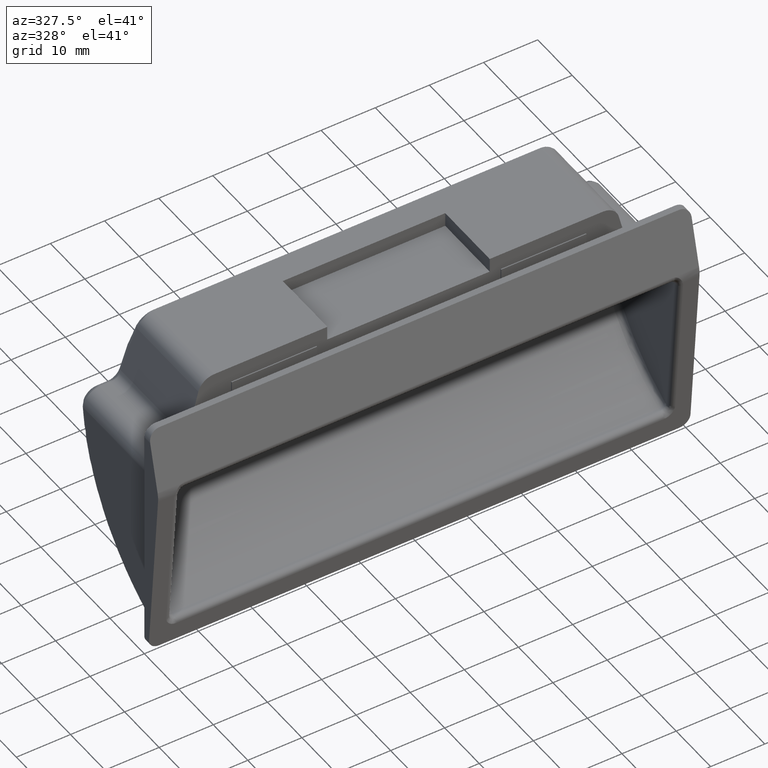
[diagram: clean part render]
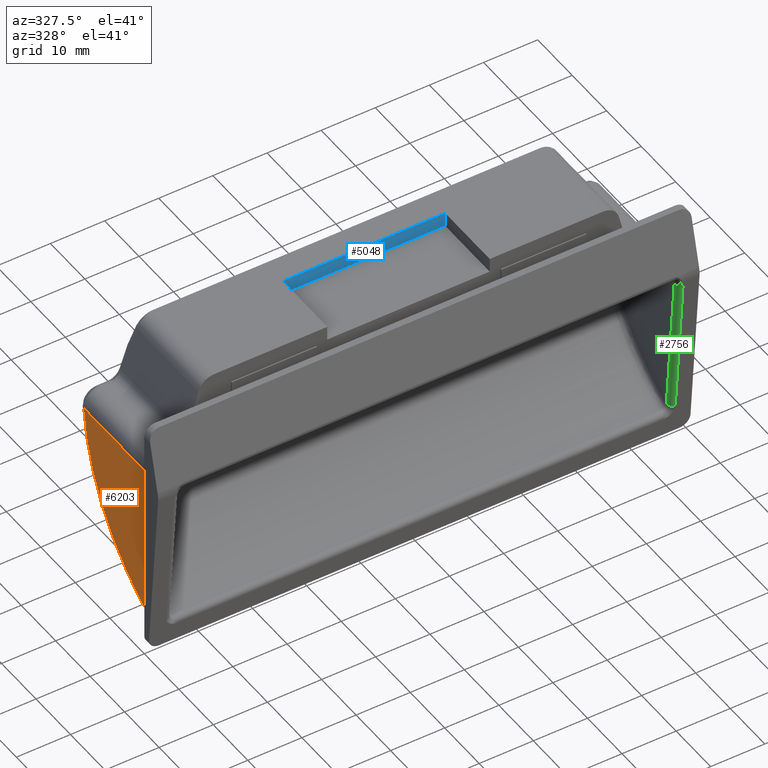
[diagram: same view with three faces highlighted in distinct colors, each labeled with its STEP entity id]
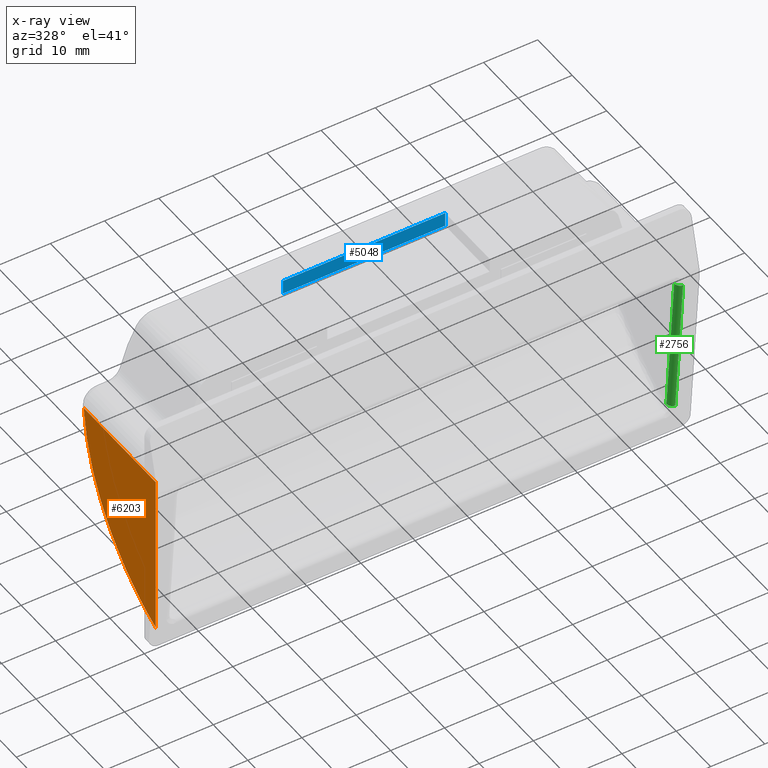
[diagram: x-ray of the same camera — body ghosted, the three highlighted faces saturated]
A machine part, auxiliary view with three faces highlighted in distinct colors.
The next image is the same camera in x-ray (body ghosted, the three faces saturated) — at least one of them is partly hidden behind the body in this view.
Their STEP definitions:

[orange] entity #6203 — the highlighted face is a freeform B-spline surface patch.
#182=CARTESIAN_POINT('',(-47.896685749016193,-0.001224091961159,-20.546921611470491));
#183=VERTEX_POINT('',#182);
#222=CARTESIAN_POINT('',(-47.899999999999999,20.856489700100902,9.449999999999900));
#223=VERTEX_POINT('',#222);
#224=CARTESIAN_POINT('',(-47.899999999999999,20.856489700100902,9.449999999999900));
#225=CARTESIAN_POINT('',(-47.899625413972203,20.426494258340728,4.719709121271092));
#226=CARTESIAN_POINT('',(-47.899208002734632,18.821062741107738,0.231620377569098));
#227=CARTESIAN_POINT('',(-47.898786745646092,17.200839455522459,-4.297819721410084));
#228=CARTESIAN_POINT('',(-47.898355822993608,14.512382557183440,-8.214381477635030));
#229=CARTESIAN_POINT('',(-47.897920059077862,11.793721798472919,-12.174944417026399));
#230=CARTESIAN_POINT('',(-47.897495575854201,8.112151348506636,-15.314624998147840));
#231=CARTESIAN_POINT('',(-47.897065847459942,4.385089194683768,-18.493101365236139));
#232=CARTESIAN_POINT('',(-47.896685749016193,-0.001224091961159,-20.546921611470491));
#233=B_SPLINE_CURVE_WITH_KNOTS('',2,(#224,#225,#226,#227,#228,#229,#230,#231,#232),.UNSPECIFIED.,.F.,.U.,(3,2,2,2,3),(0.0,0.250000000000000,0.500000000000000,0.750000000000000,0.999994914082691),.UNSPECIFIED.);
#234=EDGE_CURVE('',#223,#183,#233,.T.);
#5818=CARTESIAN_POINT('',(-47.899999999999999,0.0,9.449999999999900));
#5819=VERTEX_POINT('',#5818);
#5833=CARTESIAN_POINT('',(-47.896685749016193,-0.001224091961159,-20.546921611470491));
#5834=CARTESIAN_POINT('',(-47.899999999999999,0.0,9.449999999999900));
#5835=QUASI_UNIFORM_CURVE('',1,(#5833,#5834),.UNSPECIFIED.,.F.,.U.);
#5836=EDGE_CURVE('',#183,#5819,#5835,.T.);
#6184=CARTESIAN_POINT('',(-47.899999999999999,20.856489700100902,9.449999999999900));
#6185=CARTESIAN_POINT('',(-47.899999999999999,0.0,9.449999999999900));
#6186=QUASI_UNIFORM_CURVE('',1,(#6184,#6185),.UNSPECIFIED.,.F.,.U.);
#6187=EDGE_CURVE('',#223,#5819,#6186,.T.);
#6193=CARTESIAN_POINT('',(-47.899999999999999,-1.043066780929960,10.948346069182911));
#6194=CARTESIAN_POINT('',(-47.899999999999999,-1.043066780929960,-22.045266339686620));
#6195=CARTESIAN_POINT('',(-47.899999999999999,21.898331456657239,10.948346069182911));
#6196=CARTESIAN_POINT('',(-47.899999999999999,21.898331456657239,-22.045266339686620));
#6197=B_SPLINE_SURFACE_WITH_KNOTS('',1,1,((#6193,#6195),(#6194,#6196)),.UNSPECIFIED.,.F.,.F.,.U.,(2,2),(2,2),(0.0,32.993612408869531),(0.0,22.941398237587190),.UNSPECIFIED.);
#6198=ORIENTED_EDGE('',*,*,#6187,.F.);
#6199=ORIENTED_EDGE('',*,*,#234,.T.);
#6200=ORIENTED_EDGE('',*,*,#5836,.T.);
#6201=EDGE_LOOP('',(#6198,#6199,#6200));
#6202=FACE_OUTER_BOUND('',#6201,.T.);
#6203=ADVANCED_FACE('',(#6202),#6197,.F.);

[blue] entity #5048 — the highlighted face is a freeform B-spline surface patch.
#5013=CARTESIAN_POINT('',(-16.498499941854181,14.800000000000001,24.879870013538749));
#5014=CARTESIAN_POINT('',(16.498500746516889,14.800000000000001,24.879870013538749));
#5015=CARTESIAN_POINT('',(-16.498499941854181,14.800000000000001,22.020129544790830));
#5016=CARTESIAN_POINT('',(16.498500746516889,14.800000000000001,22.020129544790830));
#5017=B_SPLINE_SURFACE_WITH_KNOTS('',1,1,((#5013,#5015),(#5014,#5016)),.UNSPECIFIED.,.F.,.F.,.U.,(2,2),(2,2),(0.0,32.997000688371060),(0.0,2.859740468747919),.UNSPECIFIED.);
#5018=CARTESIAN_POINT('',(15.0,14.800000000000001,24.750000000000000));
#5019=VERTEX_POINT('',#5018);
#5020=CARTESIAN_POINT('',(-15.0,14.800000000000001,24.750000000000000));
#5021=VERTEX_POINT('',#5020);
#5022=CARTESIAN_POINT('',(15.0,14.800000000000001,24.750000000000000));
#5023=CARTESIAN_POINT('',(-15.0,14.800000000000001,24.750000000000000));
#5024=QUASI_UNIFORM_CURVE('',1,(#5022,#5023),.UNSPECIFIED.,.F.,.U.);
#5025=EDGE_CURVE('',#5019,#5021,#5024,.T.);
#5026=ORIENTED_EDGE('',*,*,#5025,.T.);
#5027=CARTESIAN_POINT('',(-15.0,14.800000000000001,22.149999999999999));
#5028=VERTEX_POINT('',#5027);
#5029=CARTESIAN_POINT('',(-15.0,14.800000000000001,24.750000000000000));
#5030=CARTESIAN_POINT('',(-15.0,14.800000000000001,22.149999999999999));
#5031=QUASI_UNIFORM_CURVE('',1,(#5029,#5030),.UNSPECIFIED.,.F.,.U.);
#5032=EDGE_CURVE('',#5021,#5028,#5031,.T.);
#5033=ORIENTED_EDGE('',*,*,#5032,.T.);
#5034=CARTESIAN_POINT('',(15.0,14.800000000000001,22.149999999999999));
#5035=VERTEX_POINT('',#5034);
#5036=CARTESIAN_POINT('',(-15.0,14.800000000000001,22.149999999999999));
#5037=CARTESIAN_POINT('',(15.0,14.800000000000001,22.149999999999999));
#5038=QUASI_UNIFORM_CURVE('',1,(#5036,#5037),.UNSPECIFIED.,.F.,.U.);
#5039=EDGE_CURVE('',#5028,#5035,#5038,.T.);
#5040=ORIENTED_EDGE('',*,*,#5039,.T.);
#5041=CARTESIAN_POINT('',(15.0,14.800000000000001,22.149999999999999));
#5042=CARTESIAN_POINT('',(15.0,14.800000000000001,24.750000000000000));
#5043=QUASI_UNIFORM_CURVE('',1,(#5041,#5042),.UNSPECIFIED.,.F.,.U.);
#5044=EDGE_CURVE('',#5035,#5019,#5043,.T.);
#5045=ORIENTED_EDGE('',*,*,#5044,.T.);
#5046=EDGE_LOOP('',(#5026,#5033,#5040,#5045));
#5047=FACE_OUTER_BOUND('',#5046,.T.);
#5048=ADVANCED_FACE('',(#5047),#5017,.F.);

[green] entity #2756 — the highlighted face is a freeform B-spline surface patch.
#2520=CARTESIAN_POINT('',(47.0,-1.662433225174090,-17.835090263074150));
#2521=VERTEX_POINT('',#2520);
#2522=CARTESIAN_POINT('',(46.0,-0.666059978278164,-17.750000000000000));
#2523=VERTEX_POINT('',#2522);
#2524=CARTESIAN_POINT('',(47.0,-1.662433225174090,-17.835090263074150));
#2525=CARTESIAN_POINT('',(46.585786437626901,-1.662433225174092,-17.835090263074388));
#2526=CARTESIAN_POINT('',(46.292893218813447,-1.370602257751133,-17.810167902032841));
#2527=CARTESIAN_POINT('',(46.0,-1.078771290328174,-17.785245540991298));
#2528=CARTESIAN_POINT('',(46.0,-0.666059978278165,-17.750000000000000));
#2536=(BOUNDED_CURVE()B_SPLINE_CURVE(2,(#2524,#2525,#2526,#2527,#2528),.UNSPECIFIED.,.F.,.U.)B_SPLINE_CURVE_WITH_KNOTS((3,2,3),(0.0,0.500000000000000,1.0),.UNSPECIFIED.)CURVE()GEOMETRIC_REPRESENTATION_ITEM()RATIONAL_B_SPLINE_CURVE((1.0,0.923879532511287,1.0,0.923879532511287,1.0))REPRESENTATION_ITEM(''));
#2537=EDGE_CURVE('',#2521,#2523,#2536,.T.);
#2712=CARTESIAN_POINT('',(47.026176948307878,-1.605514301066259,-18.497561104766401));
#2713=CARTESIAN_POINT('',(47.026176948307878,-3.983183397368658,9.344001395233400));
#2714=CARTESIAN_POINT('',(45.935242411405888,-1.633977821372995,-18.499991889051774));
#2715=CARTESIAN_POINT('',(45.935242411405888,-4.011646917675402,9.341570610948024));
#2716=CARTESIAN_POINT('',(46.001865201578141,-0.548655354842467,-18.407305363710670));
#2717=CARTESIAN_POINT('',(46.001865201578141,-2.926324451144865,9.434257136289133));
#2725=(BOUNDED_SURFACE()B_SPLINE_SURFACE(1,2,((#2712,#2714,#2716),(#2713,#2715,#2717)),.UNSPECIFIED.,.F.,.F.,.U.)B_SPLINE_SURFACE_WITH_KNOTS((2,2),(3,3),(0.0,27.942904515688891),(0.0,1.0),.UNSPECIFIED.)GEOMETRIC_REPRESENTATION_ITEM()RATIONAL_B_SPLINE_SURFACE(((1.0,0.675590207615660,1.0),(1.0,0.675590207615660,1.0)))REPRESENTATION_ITEM('')SURFACE());
#2726=CARTESIAN_POINT('',(47.0,-3.925532900417285,8.664909736925420));
#2727=VERTEX_POINT('',#2726);
#2728=CARTESIAN_POINT('',(46.0,-2.929159653521355,8.749999999999799));
#2729=VERTEX_POINT('',#2728);
#2730=CARTESIAN_POINT('',(47.0,-3.925532900417282,8.664909736925415));
#2731=CARTESIAN_POINT('',(46.000000000000007,-3.925532900417283,8.664909736925415));
#2732=CARTESIAN_POINT('',(46.0,-2.929159653521355,8.749999999999799));
#2740=(BOUNDED_CURVE()B_SPLINE_CURVE(2,(#2730,#2731,#2732),.UNSPECIFIED.,.F.,.U.)CURVE()GEOMETRIC_REPRESENTATION_ITEM()QUASI_UNIFORM_CURVE()RATIONAL_B_SPLINE_CURVE((1.0,0.707106781186548,1.0))REPRESENTATION_ITEM(''));
#2741=EDGE_CURVE('',#2727,#2729,#2740,.T.);
#2742=ORIENTED_EDGE('',*,*,#2741,.T.);
#2743=CARTESIAN_POINT('',(46.0,-0.666059978278164,-17.750000000000000));
#2744=CARTESIAN_POINT('',(46.0,-2.929159653521355,8.749999999999799));
#2745=QUASI_UNIFORM_CURVE('',1,(#2743,#2744),.UNSPECIFIED.,.F.,.U.);
#2746=EDGE_CURVE('',#2523,#2729,#2745,.T.);
#2747=ORIENTED_EDGE('',*,*,#2746,.F.);
#2748=ORIENTED_EDGE('',*,*,#2537,.F.);
#2749=CARTESIAN_POINT('',(47.0,-3.925532900417285,8.664909736925420));
#2750=CARTESIAN_POINT('',(47.0,-1.662433225174090,-17.835090263074150));
#2751=QUASI_UNIFORM_CURVE('',1,(#2749,#2750),.UNSPECIFIED.,.F.,.U.);
#2752=EDGE_CURVE('',#2727,#2521,#2751,.T.);
#2753=ORIENTED_EDGE('',*,*,#2752,.F.);
#2754=EDGE_LOOP('',(#2742,#2747,#2748,#2753));
#2755=FACE_OUTER_BOUND('',#2754,.T.);
#2756=ADVANCED_FACE('',(#2755),#2725,.T.);